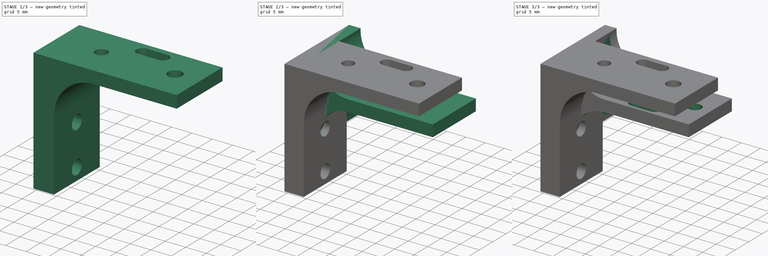
[diagram: build sequence overview — one tinted view per stage of 3, left to right]
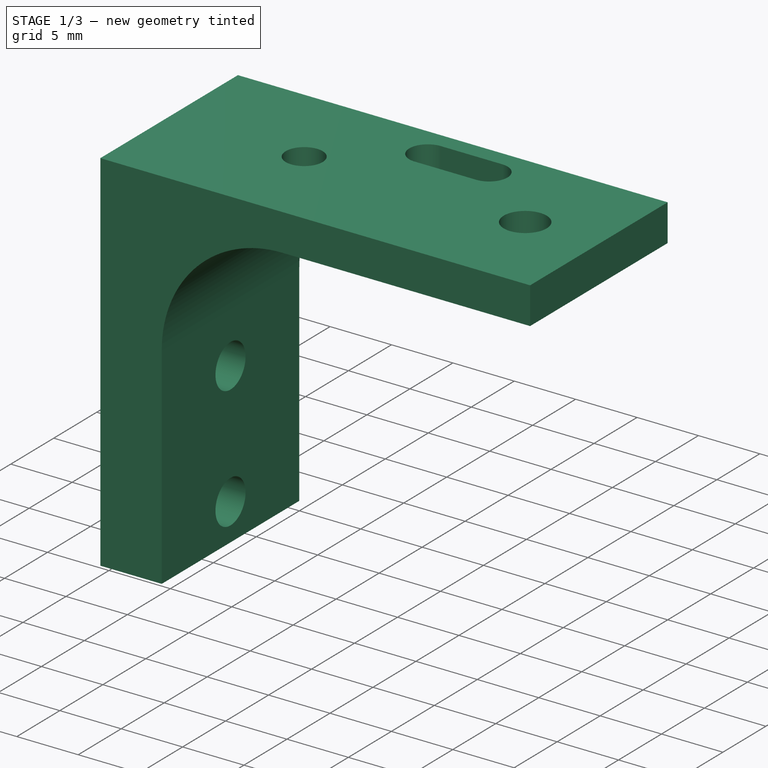
[diagram: stage 1 of 3 — iso view after this stage's code; geometry added in this stage tinted green]
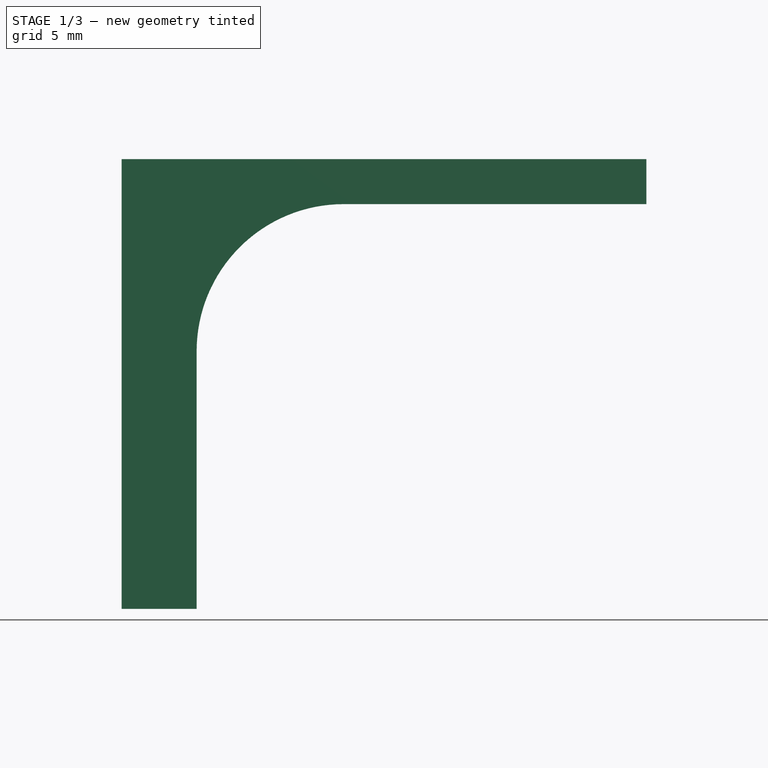
[diagram: stage 1 of 3 — front view after this stage's code; geometry added in this stage tinted green]
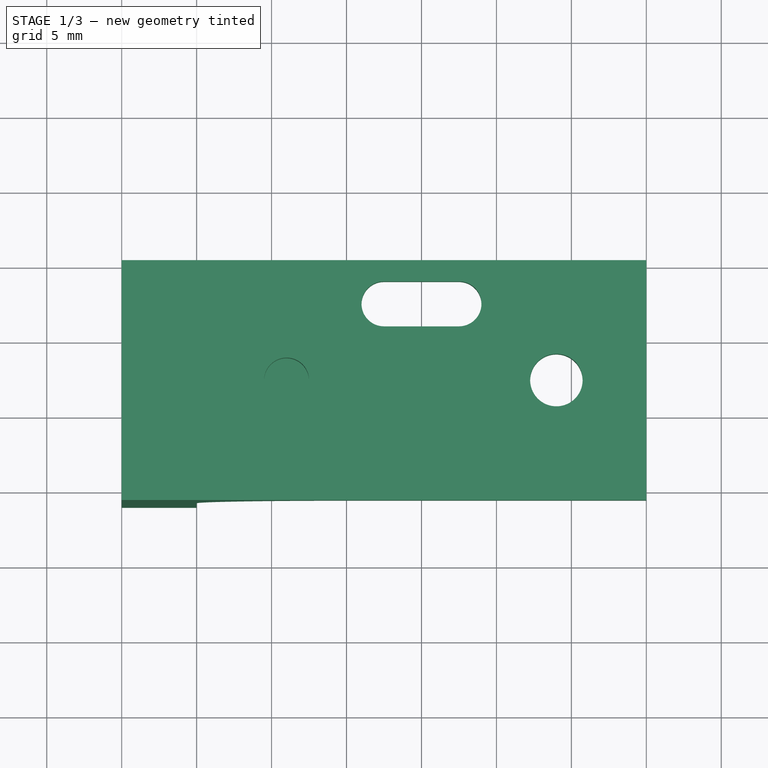
[diagram: stage 1 of 3 — top view after this stage's code; geometry added in this stage tinted green]
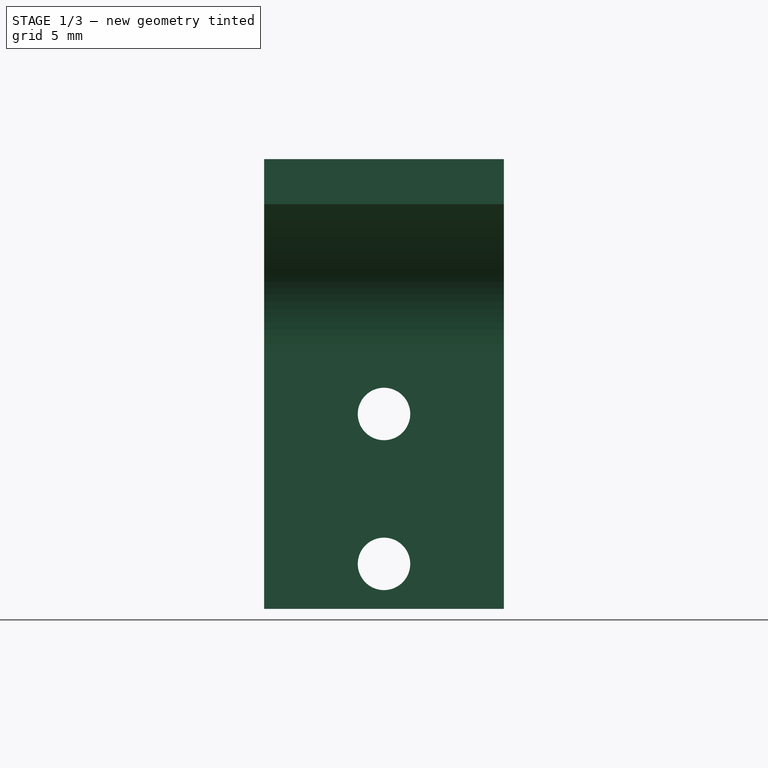
[diagram: stage 1 of 3 — right view after this stage's code; geometry added in this stage tinted green]
FCSTD DOCUMENT  (FreeCAD 0.20R27319 (Git))
Label: Touch Bracket
License: All rights reserved
LicenseURL: http://en.wikipedia.org/wiki/All_rights_reserved
objects: Sketcher::SketchObject×8, PartDesign::Pocket×6, PartDesign::Pad×2, PartDesign::Body×2
note: 26 computed .brp shape members not serialized (recipe doc carries the construction recipe); baked Part::Feature solids carry a one-line shape summary decoded from their .brp

FEATURE [PartDesign::Body] Body  label="Touch Bracket Middle"
  Group = -> [Sketch,Pad,Sketch001,Pocket,Sketch002,Pocket001,Sketch004,Pocket003]
  Origin = -> Origin
  Tip = -> Pocket003
FEATURE [Sketcher::SketchObject] Sketch005
  FullyConstrained = false
  MapMode = 5
  Placement = pos=(0,0,0) rot=(1,0,0;1.5708rad)
  Support = -> [XZ_Plane001]
  sketch-geometry (8):
    g0: LineSegment StartX=0 StartY=-30 StartZ=0 EndX=0 EndY=0 EndZ=0
    g1: LineSegment StartX=0 StartY=0 StartZ=0 EndX=35 EndY=0 EndZ=0
    g2: LineSegment StartX=35 StartY=0 StartZ=0 EndX=35 EndY=-3 EndZ=0
    g3: LineSegment StartX=35 StartY=-3 StartZ=0 EndX=14.8109 EndY=-3 EndZ=0
    g4: LineSegment StartX=5 StartY=-12.8109 StartZ=0 EndX=5 EndY=-30 EndZ=0
    g5: LineSegment StartX=5 StartY=-30 StartZ=0 EndX=0 EndY=-30 EndZ=0
    g6: ArcOfCircle CenterX=14.8109 CenterY=-12.8109 CenterZ=0 NormalX=0 NormalY=0 NormalZ=1 AngleXU=0 Radius=9.81092 StartAngle=1.5708 EndAngle=3.14159
    g7: GeomPoint X=5 Y=-3 Z=0
  constraints (20):
    c: PointOnObject(g0,g-2)
    c: PointOnObject(g1,g-1)
    c: Coincident(g1,g2)
    c: Vertical(g2)
    c: Coincident(g2,g3)
    c: Horizontal(g3)
    c: Vertical(g4)
    c: Coincident(g4,g5)
    c: Coincident(g5,g0)
    c: Horizontal(g5)
    c: Distance(g2) = 3
    c: Distance(g5) = 5
    c: Distance(g3,g7) = 30
    c: DistanceY(g0,g-1) = 30
    c: Coincident(g0,g1)
    c: Coincident(g0,g-1)
    c: PointOnObject(g7,g3)
    c: PointOnObject(g7,g4)
    c: Tangent(g3,g6) = -1.5708
    c: Tangent(g4,g6) = -1.5708
FEATURE [PartDesign::Pad] Pad001
  Direction = (0,-1,2e-16)
  Length = 16
  Length2 = 0
  Placement = pos=(0,0,0) rot=(1,0,0;1.5708rad)
  Profile = -> Sketch005
  ReferenceAxis = -> Sketch005 [N_Axis]
  Type = 0
FEATURE [Sketcher::SketchObject] Sketch006
  ExternalGeometry = -> [Pad001]
  FullyConstrained = false
  MapMode = 5
  Placement = pos=(0,-1.3e-15,-3) rot=(1,0,0;3.14159rad)
  Support = -> [Pad001]
  sketch-geometry (18):
    g0: LineSegment StartX=-3.86893 StartY=8 StartZ=0 EndX=44.2125 EndY=8 EndZ=0
    g1: Circle CenterX=11 CenterY=8 CenterZ=0 NormalX=0 NormalY=0 NormalZ=1 AngleXU=0 Radius=1.5
    g2: Circle CenterX=29 CenterY=8 CenterZ=0 NormalX=0 NormalY=0 NormalZ=1 AngleXU=0 Radius=1.75
    g3: ArcOfCircle CenterX=17.5 CenterY=2.91371 CenterZ=0 NormalX=0 NormalY=0 NormalZ=1 AngleXU=0 Radius=1.5 StartAngle=1.5708 EndAngle=4.71239
    g4: ArcOfCircle CenterX=22.5 CenterY=2.91371 CenterZ=0 NormalX=0 NormalY=0 NormalZ=1 AngleXU=0 Radius=1.5 StartAngle=4.71239 EndAngle=7.85398
    g5: LineSegment StartX=17.5 StartY=1.41371 StartZ=0 EndX=22.5 EndY=1.41371 EndZ=0
    g6: LineSegment StartX=22.5 StartY=4.41371 StartZ=0 EndX=17.5 EndY=4.41371 EndZ=0
    g7: LineSegment StartX=20 StartY=15.8525 StartZ=0 EndX=20 EndY=-2.75174 EndZ=0
    g8: ArcOfCircle CenterX=29 CenterY=8 CenterZ=0 NormalX=0 NormalY=0 NormalZ=1 AngleXU=0 Radius=4 StartAngle=5.10656 EndAngle=7.45981
    g9: ArcOfCircle CenterX=11 CenterY=8 CenterZ=0 NormalX=0 NormalY=0 NormalZ=1 AngleXU=0 Radius=4 StartAngle=1.96496 EndAngle=4.31822
    g10: LineSegment StartX=14.4568 StartY=13.77 StartZ=0 EndX=25.5432 EndY=13.77 EndZ=0
    g11: LineSegment StartX=14.4568 StartY=2.23 StartZ=0 EndX=25.5432 EndY=2.23 EndZ=0
    g12: LineSegment StartX=9.46384 StartY=11.6933 StartZ=0 EndX=14.4568 EndY=13.77 EndZ=0
    g13: LineSegment StartX=25.5432 StartY=13.77 StartZ=0 EndX=30.5362 EndY=11.6933 EndZ=0
    g14: LineSegment StartX=9.46384 StartY=4.30673 StartZ=0 EndX=14.4568 EndY=2.23 EndZ=0
    g15: LineSegment StartX=25.5432 StartY=2.23 StartZ=0 EndX=30.5362 EndY=4.30673 EndZ=0
    g16: GeomPoint X=7 Y=8 Z=0
    g17: GeomPoint X=33 Y=8 Z=0
  constraints (35):
    c: Symmetric(g-3,g-3,g0)
    c: PointOnObject(g1,g0)
    c: PointOnObject(g2,g0)
    c: Tangent(g3,g5) = -1.5708
    c: Tangent(g5,g4) = -1.5708
    c: Tangent(g4,g6) = -1.5708
    c: Tangent(g6,g3) = -1.5708
    c: Symmetric(g3,g4,g7)
    c: Symmetric(g1,g2,g7)
    c: DistanceX(g1,g2) = 18
    c: Diameter(g2) = 3.5
    c: Equal(g3,g1)
    c: DistanceX(g-1,g7) = 20
    c: Coincident(g9,g1)
    c: Coincident(g8,g2)
    c: Radius(g9) = 4
    c: Coincident(g12,g10)
    c: Coincident(g13,g10)
    c: Coincident(g14,g11)
    c: Coincident(g15,g11)
    c: DistanceY(g11,g10) = 11.54
    c: Tangent(g12,g9) = 1.5708
    c: Tangent(g14,g9) = -1.5708
    c: Tangent(g13,g8) = 1.5708
    c: Tangent(g15,g8) = -1.5708
    c: Symmetric(g11,g10,g0)
    c: PointOnObject(g16,g0)
    c: PointOnObject(g17,g8)
    c: PointOnObject(g16,g9)
    c: Symmetric(g16,g17,g7)
    c: Symmetric(g10,g10,g7)
    c: Symmetric(g10,g11,g0)
    c: Distance(g5) = 5
    c: Radius(g4) = 1.5
    c: Equal(g4,g3)
FEATURE [PartDesign::Pocket] Pocket004
  BaseFeature = -> Pad001
  Direction = (0,4e-16,1)
  Length = 5
  Length2 = 5
  Placement = pos=(0,0,0) rot=(1,0,0;1.5708rad)
  Profile = -> Sketch006
  ReferenceAxis = -> Sketch006 [N_Axis]
  Type = 1
FEATURE [Sketcher::SketchObject] Sketch007
  ExternalGeometry = -> [Pocket004]
  FullyConstrained = false
  MapMode = 5
  Placement = pos=(5,0,0) rot=(0.707107,0,0.707107;3.14159rad)
  Support = -> [Pocket004]
  sketch-geometry (4):
    g0: LineSegment StartX=3.31957 StartY=8 StartZ=0 EndX=-48.3366 EndY=8 EndZ=0
    g1: LineSegment StartX=-22 StartY=-5.52396 StartZ=0 EndX=-22 EndY=15.7291 EndZ=0
    g2: Circle CenterX=-17 CenterY=8 CenterZ=0 NormalX=0 NormalY=0 NormalZ=1 AngleXU=0 Radius=1.75
    g3: Circle CenterX=-27 CenterY=8 CenterZ=0 NormalX=0 NormalY=0 NormalZ=1 AngleXU=0 Radius=1.75
  constraints (8):
    c: Vertical(g1)
    c: Symmetric(g-3,g-3,g0)
    c: PointOnObject(g2,g0)
    c: Symmetric(g2,g3,g1)
    c: DistanceX(g3,g2) = 10
    c: DistanceX(g1,g-1) = 22
    c: Equal(g2,g3)
    c: Diameter(g3) = 3.5
FEATURE [PartDesign::Pocket] Pocket005
  BaseFeature = -> Pocket004
  Direction = (-1,0,2e-16)
  Length = 5
  Length2 = 5
  Placement = pos=(0,0,0) rot=(1,0,0;1.5708rad)
  Profile = -> Sketch007
  ReferenceAxis = -> Sketch007 [N_Axis]
  Type = 1
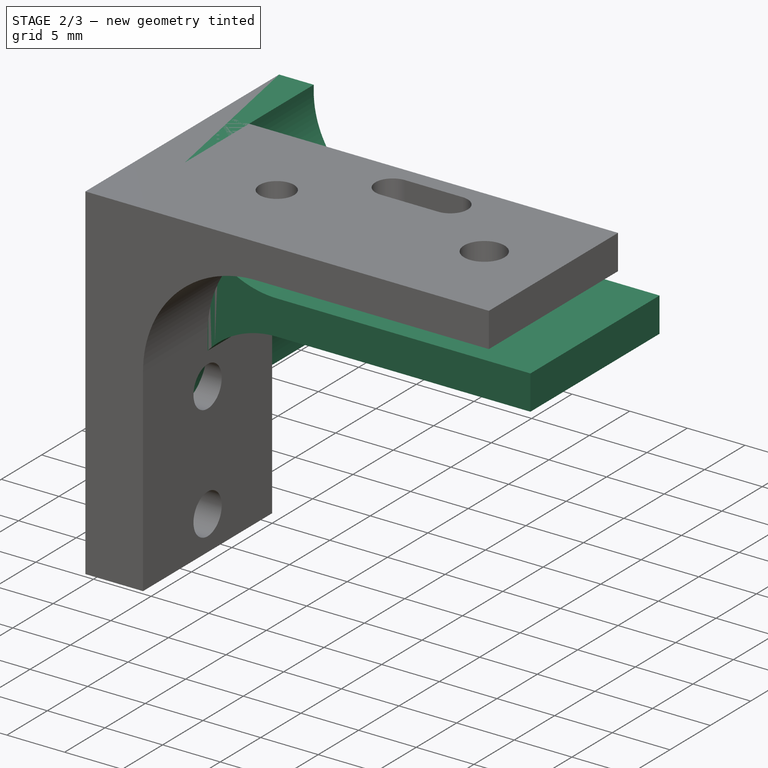
[diagram: stage 2 of 3 — iso view after this stage's code; geometry added in this stage tinted green]
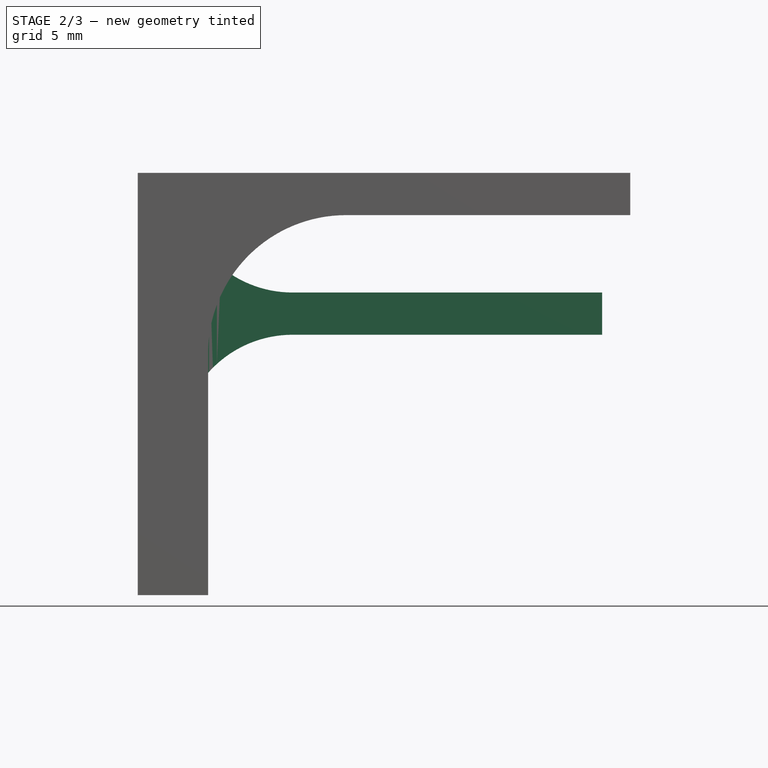
[diagram: stage 2 of 3 — front view after this stage's code; geometry added in this stage tinted green]
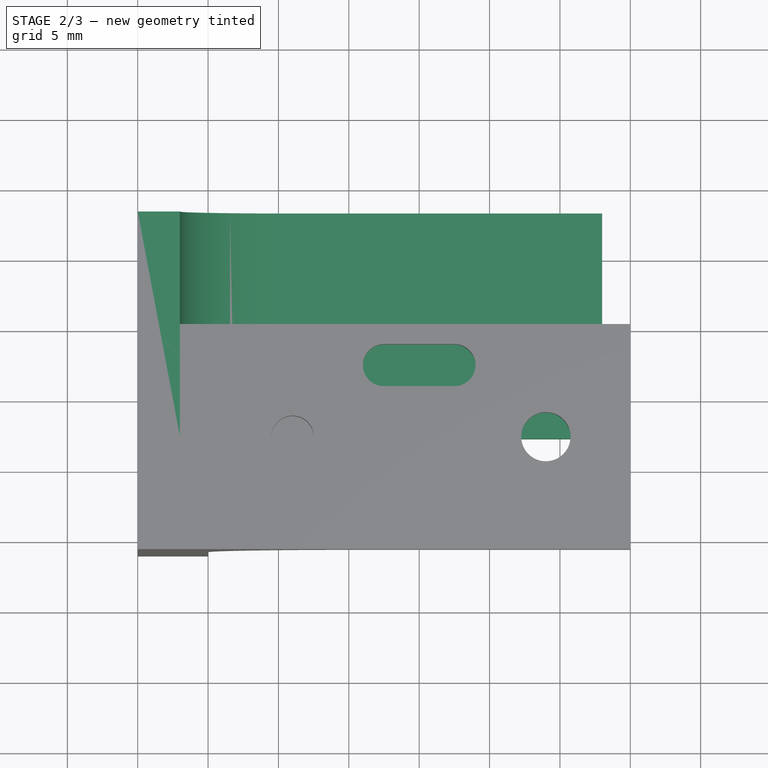
[diagram: stage 2 of 3 — top view after this stage's code; geometry added in this stage tinted green]
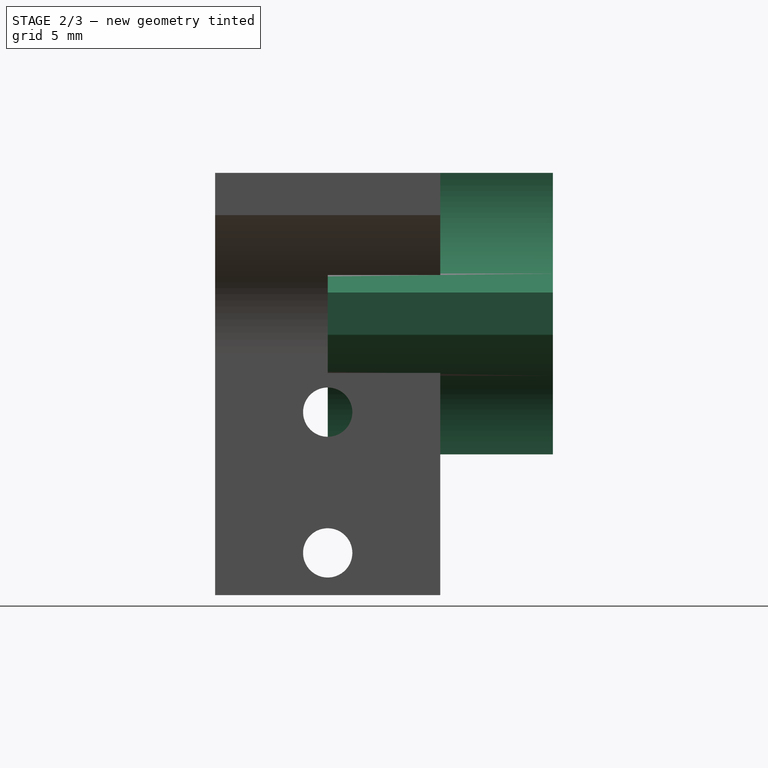
[diagram: stage 2 of 3 — right view after this stage's code; geometry added in this stage tinted green]
FEATURE [Sketcher::SketchObject] Sketch
  FullyConstrained = true
  MapMode = 5
  Placement = pos=(0,0,0) rot=(1,0,0;1.5708rad)
  Support = -> [XZ_Plane]
  sketch-geometry (12):
    g0: LineSegment StartX=0 StartY=-20 StartZ=0 EndX=0 EndY=0 EndZ=0
    g1: LineSegment StartX=33 StartY=-8.5 StartZ=0 EndX=33 EndY=-11.5 EndZ=0
    g2: LineSegment StartX=33 StartY=-11.5 StartZ=0 EndX=11 EndY=-11.5 EndZ=0
    g3: LineSegment StartX=3 StartY=-19.5 StartZ=0 EndX=3 EndY=-20 EndZ=0
    g4: LineSegment StartX=3 StartY=-20 StartZ=0 EndX=0 EndY=-20 EndZ=0
    g5: ArcOfCircle CenterX=11 CenterY=-19.5 CenterZ=0 NormalX=0 NormalY=0 NormalZ=1 AngleXU=0 Radius=8 StartAngle=1.5708 EndAngle=3.14159
    g6: GeomPoint X=3 Y=-11.5 Z=0
    g7: LineSegment StartX=33 StartY=-8.5 StartZ=0 EndX=11 EndY=-8.5 EndZ=0
    g8: LineSegment StartX=3 StartY=-0.5 StartZ=0 EndX=3 EndY=0 EndZ=0
    g9: LineSegment StartX=3 StartY=0 StartZ=0 EndX=0 EndY=0 EndZ=0
    g10: ArcOfCircle CenterX=11 CenterY=-0.5 CenterZ=0 NormalX=0 NormalY=0 NormalZ=1 AngleXU=0 Radius=8 StartAngle=3.14159 EndAngle=4.71239
    g11: GeomPoint X=3 Y=-8.5 Z=0
  constraints (31):
    c: PointOnObject(g0,g-2)
    c: Vertical(g1)
    c: Coincident(g1,g2)
    c: Horizontal(g2)
    c: Vertical(g3)
    c: Coincident(g3,g4)
    c: Coincident(g4,g0)
    c: Horizontal(g4)
    c: Distance(g1) = 3
    c: Distance(g4) = 3
    c: Distance(g2,g6) = 30
    c: DistanceY(g0,g-1) = 20
    c: Coincident(g0,g-1)
    c: PointOnObject(g6,g2)
    c: PointOnObject(g6,g3)
    c: Tangent(g2,g5) = -1.5708
    c: Tangent(g3,g5) = -1.5708
    c: Coincident(g1,g7)
    c: Horizontal(g7)
    c: PointOnObject(g8,g-1)
    c: Vertical(g8)
    c: Coincident(g8,g9)
    c: Coincident(g9,g0)
    c: Vertical(g8,g3)
    c: PointOnObject(g11,g7)
    c: PointOnObject(g11,g8)
    c: Tangent(g7,g10) = 1.5708
    c: Tangent(g8,g10) = 1.5708
    c: Equal(g10,g5)
    c: Radius(g10) = 8
    c: Equal(g8,g3)
FEATURE [PartDesign::Pad] Pad
  Direction = (0,-1,-2e-16)
  Length = 16
  Length2 = 0
  Midplane = true
  Placement = pos=(0,0,0) rot=(1,0,0;1.5708rad)
  Profile = -> Sketch
  ReferenceAxis = -> Sketch [N_Axis]
  Type = 0
FEATURE [Sketcher::SketchObject] Sketch003
  ExternalGeometry = -> [Sketch007]
  FullyConstrained = false
  MapMode = 5
  Placement = pos=(0,0,0) rot=(0.57735,0.57735,0.57735;2.0944rad)
  Support = -> [YZ_Plane001]
  sketch-geometry (2):
    g0: Circle CenterX=-7.5 CenterY=-5.5 CenterZ=0 NormalX=0 NormalY=0 NormalZ=1 AngleXU=0 Radius=4.75
    g1: LineSegment StartX=-8 StartY=-27 StartZ=0 EndX=-8 EndY=4.15724 EndZ=0
  constraints (5):
    c: Diameter(g0) = 9.5
    c: Coincident(g1,g-4)
    c: Vertical(g1)
    c: DistanceX(g1,g0) = 0.5
    c: DistanceY(g-3,g0) = 11.5
FEATURE [PartDesign::Pocket] Pocket002
  BaseFeature = -> Pocket005
  Direction = (-1,2e-16,-3e-16)
  Length = 3
  Length2 = 5
  Placement = pos=(0,0,0) rot=(1,0,0;1.5708rad)
  Profile = -> Sketch003
  ReferenceAxis = -> Sketch003 [N_Axis]
  Reversed = true
  Type = 0
FEATURE [PartDesign::Body] Body001  label="Touch Bracket High"
  Group = -> [Sketch005,Pad001,Sketch006,Pocket004,Sketch007,Pocket005,Sketch003,Pocket002]
  Origin = -> Origin001
  Tip = -> Pocket002
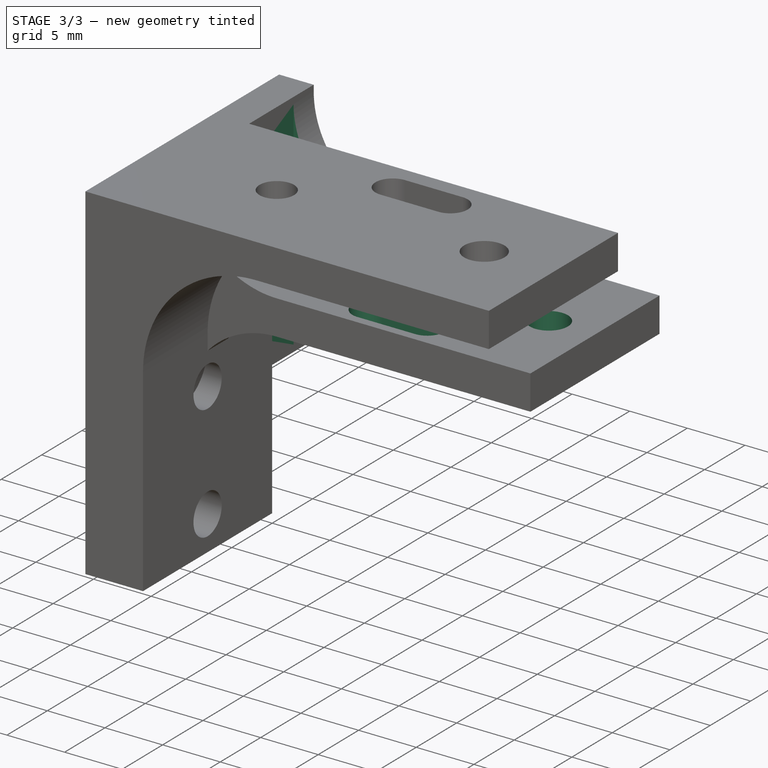
[diagram: stage 3 of 3 — iso view after this stage's code; geometry added in this stage tinted green]
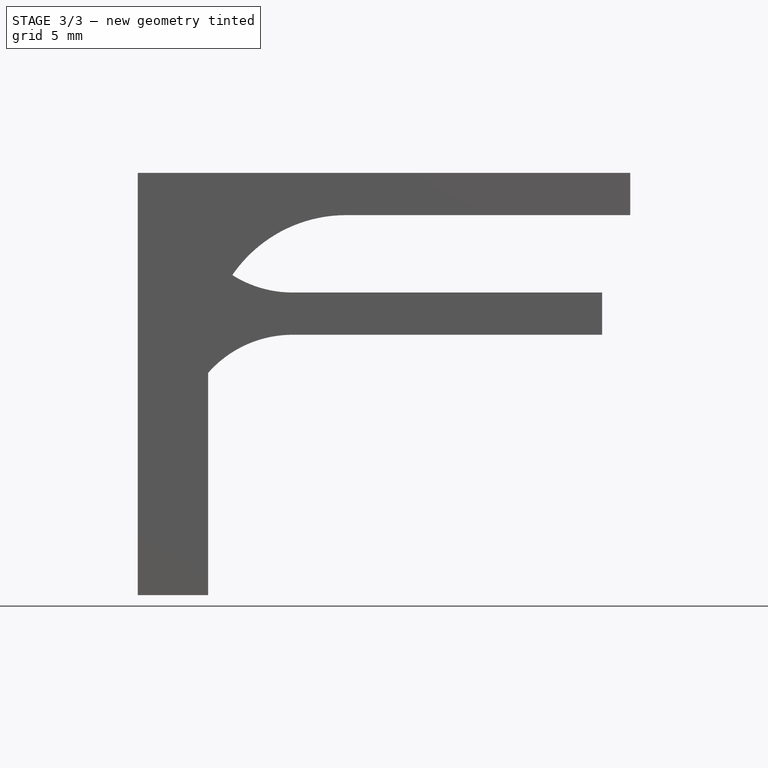
[diagram: stage 3 of 3 — front view after this stage's code; geometry added in this stage tinted green]
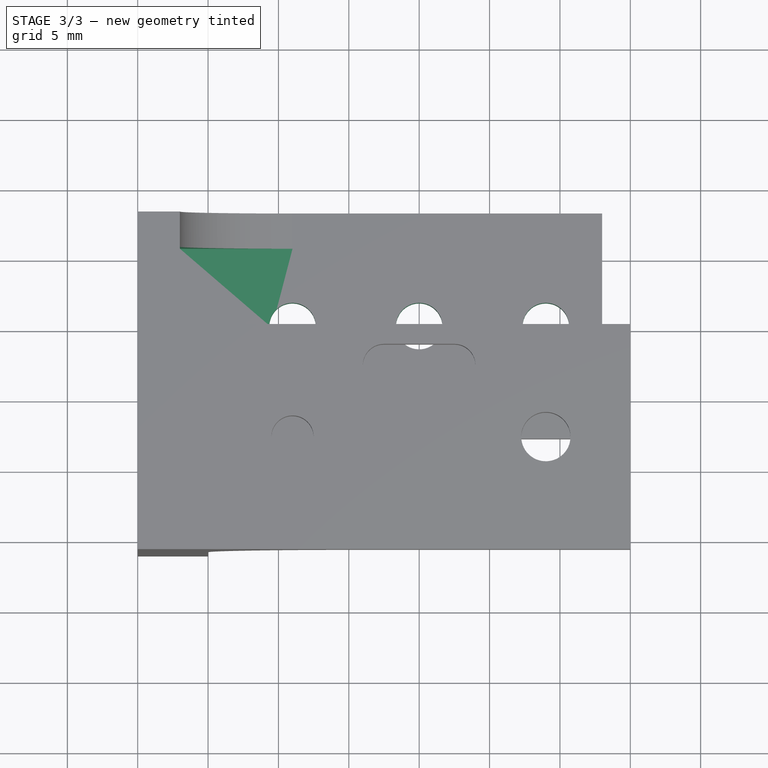
[diagram: stage 3 of 3 — top view after this stage's code; geometry added in this stage tinted green]
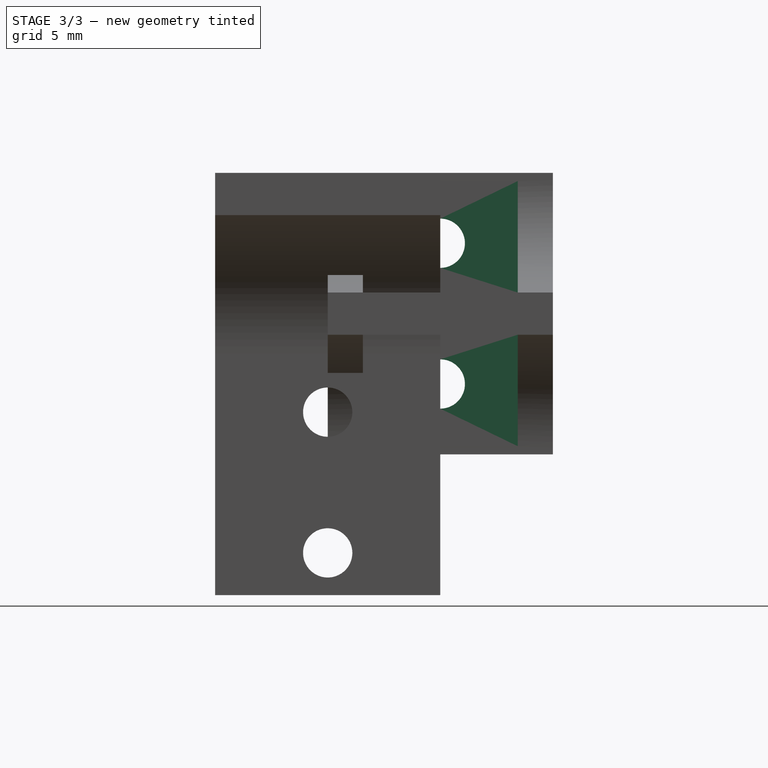
[diagram: stage 3 of 3 — right view after this stage's code; geometry added in this stage tinted green]
FEATURE [Sketcher::SketchObject] Sketch001
  ExternalGeometry = -> [Pad]
  FullyConstrained = false
  MapMode = 5
  Placement = pos=(0,-2.6e-15,-11.5) rot=(1,0,0;3.14159rad)
  Support = -> [Pad]
  sketch-geometry (19):
    g0: LineSegment StartX=-3.8296 StartY=0 StartZ=0 EndX=44.151 EndY=0 EndZ=0
    g1: Circle CenterX=11 CenterY=0 CenterZ=0 NormalX=0 NormalY=0 NormalZ=1 AngleXU=0 Radius=1.65
    g2: Circle CenterX=29 CenterY=0 CenterZ=0 NormalX=0 NormalY=0 NormalZ=1 AngleXU=0 Radius=1.65
    g3: ArcOfCircle CenterX=17.5 CenterY=5.77 CenterZ=0 NormalX=0 NormalY=0 NormalZ=1 AngleXU=0 Radius=1.5 StartAngle=1.5708 EndAngle=4.71239
    g4: ArcOfCircle CenterX=22.5 CenterY=5.77 CenterZ=0 NormalX=0 NormalY=0 NormalZ=1 AngleXU=0 Radius=1.5 StartAngle=4.71239 EndAngle=7.85398
    g5: LineSegment StartX=17.5 StartY=4.27 StartZ=0 EndX=22.5 EndY=4.27 EndZ=0
    g6: LineSegment StartX=22.5 StartY=7.27 StartZ=0 EndX=17.5 EndY=7.27 EndZ=0
    g7: LineSegment StartX=20 StartY=15.8529 StartZ=0 EndX=20 EndY=-7.01313 EndZ=0
    g8: ArcOfCircle CenterX=29 CenterY=0 CenterZ=0 NormalX=0 NormalY=0 NormalZ=1 AngleXU=0 Radius=4 StartAngle=5.10351 EndAngle=7.46287
    g9: ArcOfCircle CenterX=11 CenterY=0 CenterZ=0 NormalX=0 NormalY=0 NormalZ=1 AngleXU=0 Radius=4 StartAngle=1.96191 EndAngle=4.32127
    g10: LineSegment StartX=14.5 StartY=5.77 StartZ=0 EndX=25.5 EndY=5.77 EndZ=0
    g11: LineSegment StartX=14.5 StartY=-5.77 StartZ=0 EndX=25.5 EndY=-5.77 EndZ=0
    g12: LineSegment StartX=9.47512 StartY=3.69794 StartZ=0 EndX=14.5 EndY=5.77 EndZ=0
    g13: LineSegment StartX=25.5 StartY=5.77 StartZ=0 EndX=30.5249 EndY=3.69794 EndZ=0
    g14: LineSegment StartX=9.47512 StartY=-3.69794 StartZ=0 EndX=14.5 EndY=-5.77 EndZ=0
    g15: LineSegment StartX=25.5 StartY=-5.77 StartZ=0 EndX=30.5249 EndY=-3.69794 EndZ=0
    g16: GeomPoint X=7 Y=0 Z=0
    g17: GeomPoint X=33 Y=0 Z=0
    g18: Circle CenterX=20 CenterY=0 CenterZ=0 NormalX=0 NormalY=0 NormalZ=1 AngleXU=0 Radius=1.65
  constraints (40):
    c: Symmetric(g-3,g-3,g0)
    c: PointOnObject(g1,g0)
    c: PointOnObject(g2,g0)
    c: Tangent(g3,g5) = -1.5708
    c: Tangent(g5,g4) = -1.5708
    c: Tangent(g4,g6) = -1.5708
    c: Tangent(g6,g3) = -1.5708
    c: Symmetric(g3,g4,g7)
    c: Symmetric(g1,g2,g7)
    c: DistanceX(g1,g2) = 18
    c: Diameter(g2) = 3.3
    c: Equal(g1,g2)
    c: DistanceX(g-1,g7) = 20
    c: Coincident(g9,g1)
    c: Coincident(g8,g2)
    c: Radius(g9) = 4
    c: Coincident(g12,g10)
    c: Coincident(g13,g10)
    c: Coincident(g14,g11)
    c: Coincident(g15,g11)
    c: DistanceY(g11,g10) = 11.54
    c: Tangent(g12,g9) = 1.5708
    c: Tangent(g14,g9) = -1.5708
    c: Tangent(g13,g8) = 1.5708
    c: Tangent(g15,g8) = -1.5708
    c: Symmetric(g11,g10,g0)
    c: PointOnObject(g16,g0)
    c: PointOnObject(g17,g8)
    c: PointOnObject(g16,g9)
    c: Symmetric(g16,g17,g7)
    c: Symmetric(g10,g10,g7)
    c: Symmetric(g10,g11,g0)
    c: Distance(g5) = 5
    c: Equal(g3,g4)
    c: Radius(g4) = 1.5
    c: Equal(g18,g2)
    c: PointOnObject(g18,g0)
    c: PointOnObject(g18,g7)
    c: PointOnObject(g4,g10)
    c: Distance(g11) = 11
FEATURE [PartDesign::Pocket] Pocket
  BaseFeature = -> Pad
  Direction = (0,-2e-16,1)
  Length = 5
  Length2 = 5
  Placement = pos=(0,0,0) rot=(1,0,0;1.5708rad)
  Profile = -> Sketch001
  ReferenceAxis = -> Sketch001 [N_Axis]
  Type = 1
FEATURE [Sketcher::SketchObject] Sketch002
  FullyConstrained = false
  MapMode = 5
  Placement = pos=(0,0,0) rot=(0.707107,0,-0.707107;3.14159rad)
  Support = -> [Pocket]
  sketch-geometry (3):
    g0: LineSegment StartX=33.781 StartY=0 StartZ=0 EndX=-17.2985 EndY=0 EndZ=0
    g1: Circle CenterX=15 CenterY=0 CenterZ=0 NormalX=0 NormalY=0 NormalZ=1 AngleXU=0 Radius=1.75
    g2: Circle CenterX=5 CenterY=0 CenterZ=0 NormalX=0 NormalY=0 NormalZ=1 AngleXU=0 Radius=1.75
  constraints (8):
    c: PointOnObject(g1,g0)
    c: DistanceX(g2,g1) = 10
    c: Equal(g1,g2)
    c: Diameter(g2) = 3.5
    c: PointOnObject(g2,g0)
    c: Horizontal(g0)
    c: PointOnObject(g0,g-1)
    c: DistanceX(g-1,g2) = 5
FEATURE [PartDesign::Pocket] Pocket001
  BaseFeature = -> Pocket
  Direction = (1,0,2e-16)
  Length = 5
  Length2 = 5
  Placement = pos=(0,0,0) rot=(1,0,0;1.5708rad)
  Profile = -> Sketch002
  ReferenceAxis = -> Sketch002 [N_Axis]
  Type = 1
FEATURE [Sketcher::SketchObject] Sketch004
  ExternalGeometry = -> [Sketch002,Pocket001]
  FullyConstrained = false
  MapMode = 5
  Placement = pos=(11,0,0) rot=(0.707107,0,0.707107;3.14159rad)
  sketch-geometry (8):
    g0: LineSegment StartX=-8.5 StartY=-5.5 StartZ=0 EndX=-0.582145 EndY=-5.5 EndZ=0
    g1: LineSegment StartX=-0.582145 StartY=-5.5 StartZ=0 EndX=-0.582145 EndY=5.5 EndZ=0
    g2: LineSegment StartX=-0.582145 StartY=5.5 StartZ=0 EndX=-8.5 EndY=5.5 EndZ=0
    g3: LineSegment StartX=-8.5 StartY=5.5 StartZ=0 EndX=-8.5 EndY=-5.5 EndZ=0
    g4: LineSegment StartX=-11.5 StartY=-5.5 StartZ=0 EndX=-19.4179 EndY=-5.5 EndZ=0
    g5: LineSegment StartX=-19.4179 StartY=-5.5 StartZ=0 EndX=-19.4179 EndY=5.5 EndZ=0
    g6: LineSegment StartX=-19.4179 StartY=5.5 StartZ=0 EndX=-11.5 EndY=5.5 EndZ=0
    g7: LineSegment StartX=-11.5 StartY=5.5 StartZ=0 EndX=-11.5 EndY=-5.5 EndZ=0
  constraints (22):
    c: Coincident(g0,g1)
    c: Coincident(g1,g2)
    c: Coincident(g2,g3)
    c: Coincident(g3,g0)
    c: Horizontal(g0)
    c: Horizontal(g2)
    c: Vertical(g1)
    c: PointOnObject(g0,g-4)
    c: Coincident(g4,g5)
    c: Coincident(g5,g6)
    c: Coincident(g6,g7)
    c: Coincident(g7,g4)
    c: Horizontal(g4)
    c: Horizontal(g6)
    c: Vertical(g5)
    c: Vertical(g7)
    c: PointOnObject(g4,g-5)
    c: Equal(g4,g0)
    c: Symmetric(g0,g2,g-1)
    c: Horizontal(g6,g2)
    c: Horizontal(g4,g0)
    c: Distance(g5) = 11
FEATURE [PartDesign::Pocket] Pocket003
  BaseFeature = -> Pocket001
  Direction = (-1,1e-16,0)
  Length = 0
  Length2 = 5
  Placement = pos=(0,0,0) rot=(1,0,0;1.5708rad)
  Profile = -> Sketch004
  ReferenceAxis = -> Sketch004 [N_Axis]
  Type = 3
  UpToFace = -> Pocket001 [Face19]
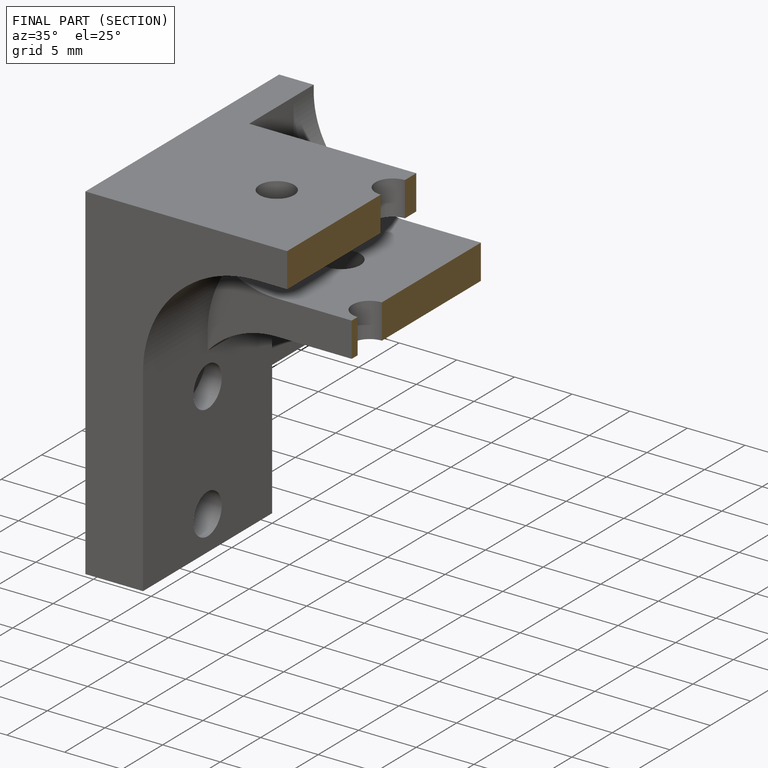
[diagram: finished part — half-section view (interior)]
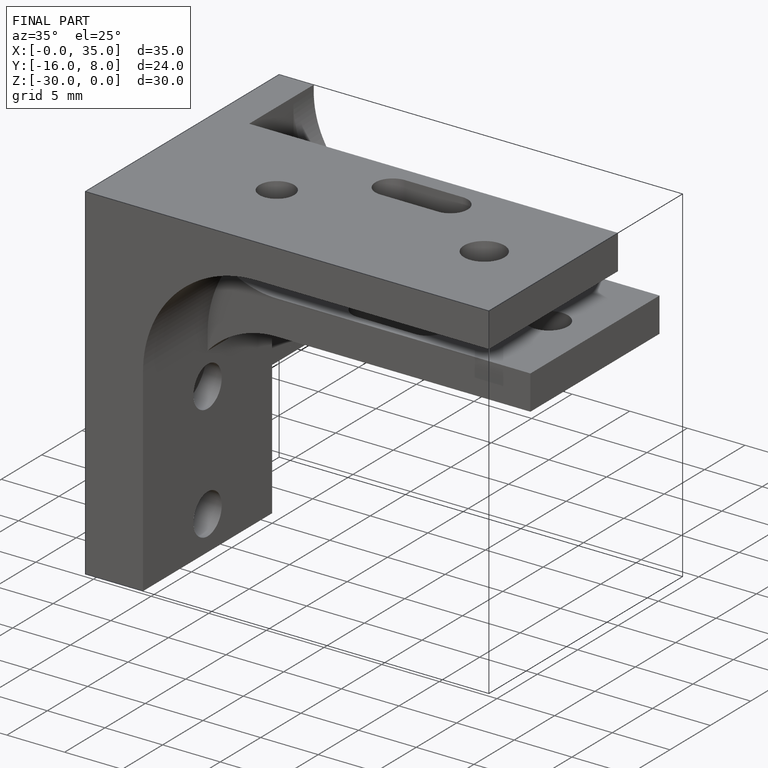
[diagram: finished part — iso view with bounding-box wireframe]
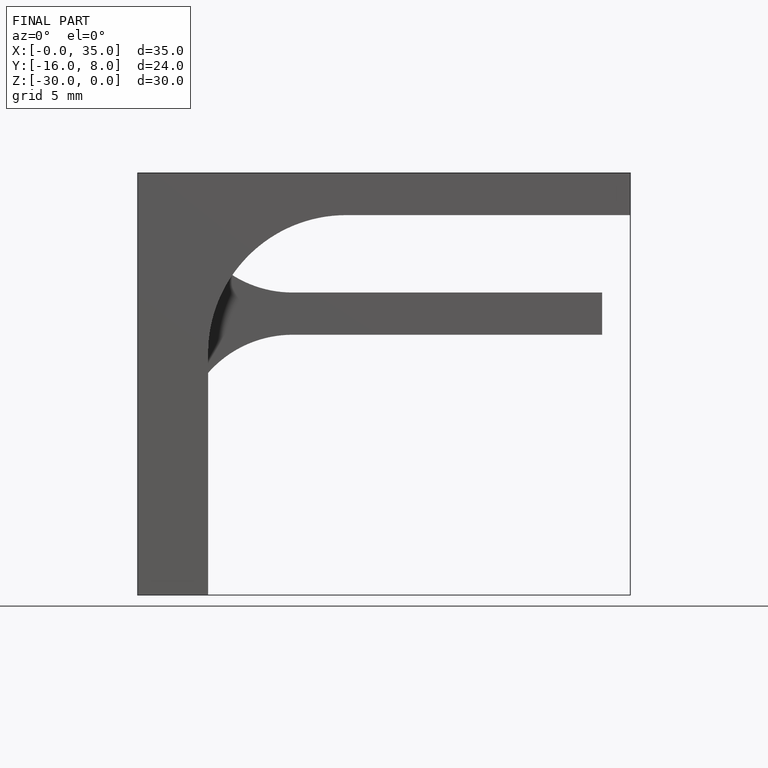
[diagram: finished part — front view with bounding-box wireframe]
